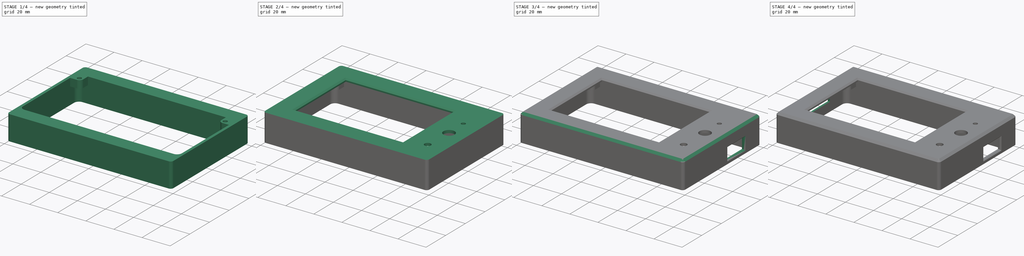
[diagram: build sequence overview — one tinted view per stage of 4, left to right]
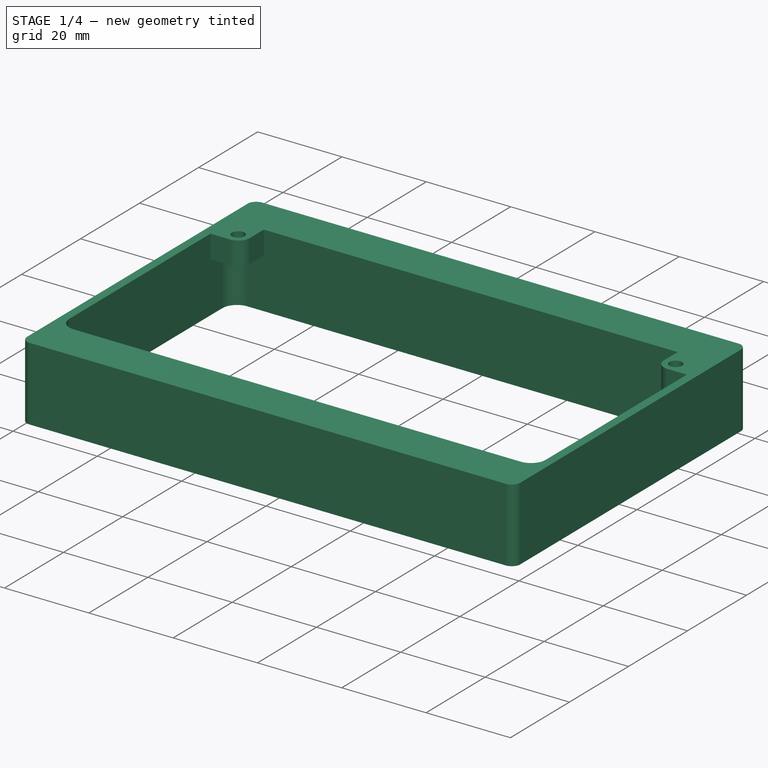
[diagram: stage 1 of 4 — iso view after this stage's code; geometry added in this stage tinted green]
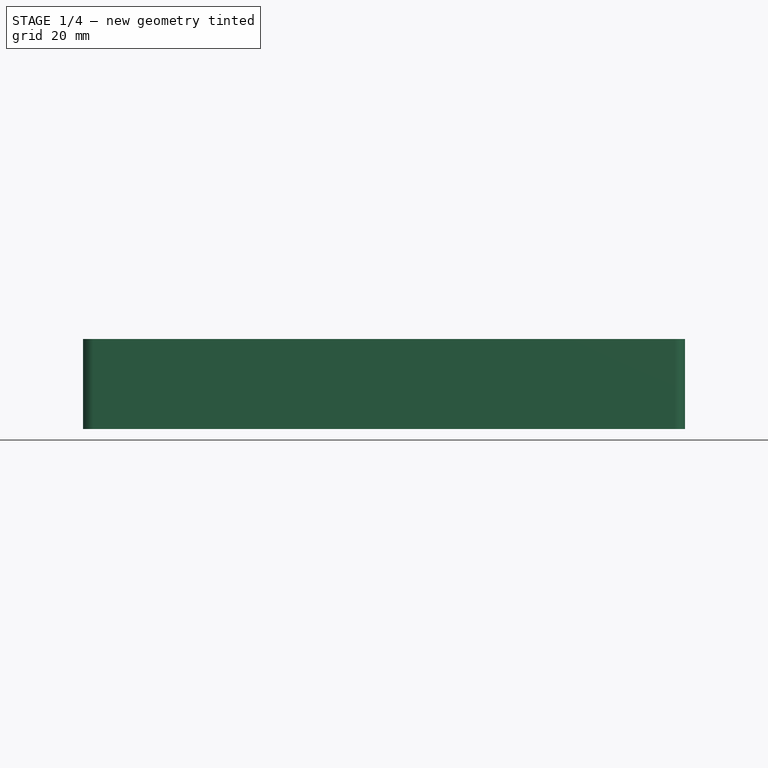
[diagram: stage 1 of 4 — front view after this stage's code; geometry added in this stage tinted green]
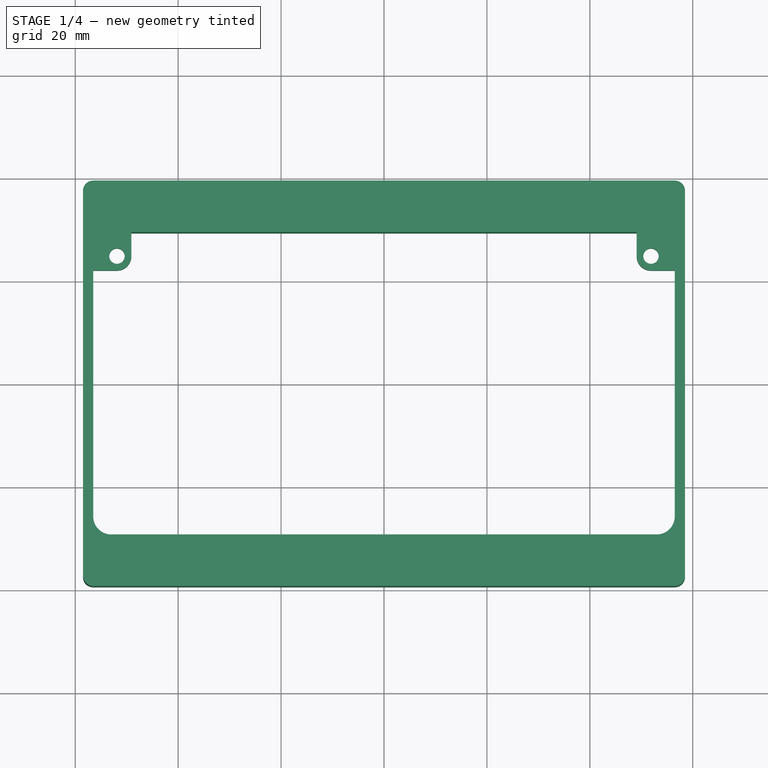
[diagram: stage 1 of 4 — top view after this stage's code; geometry added in this stage tinted green]
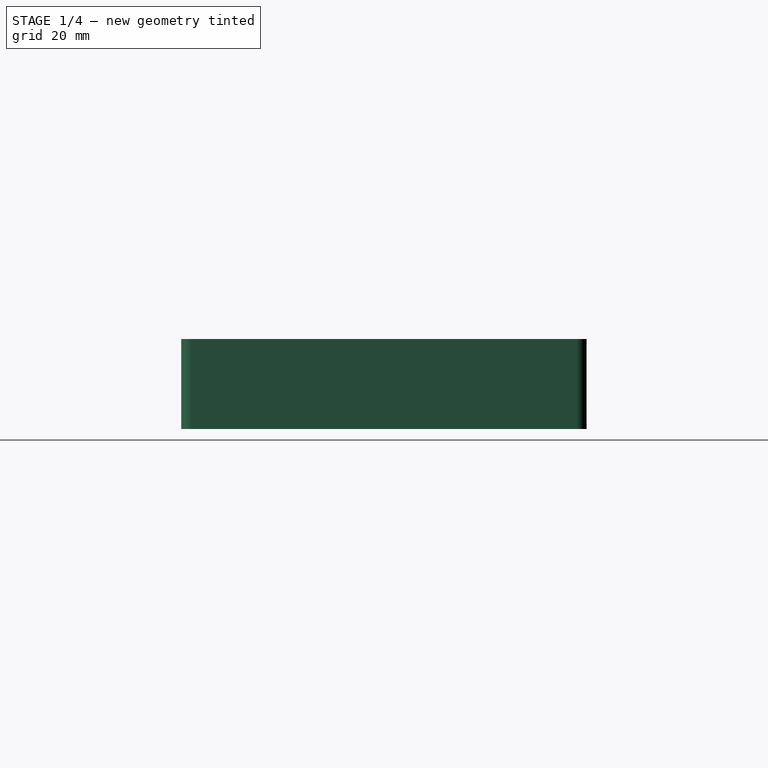
[diagram: stage 1 of 4 — right view after this stage's code; geometry added in this stage tinted green]
FCSTD DOCUMENT  (FreeCAD 2022.709R26244 +5001 (Git))
Label: v301_housing
License: All rights reserved
LicenseURL: http://en.wikipedia.org/wiki/All_rights_reserved
objects: Sketcher::SketchObject×6, PartDesign::Chamfer×4, PartDesign::Pad×3, PartDesign::Pocket×3, PartDesign::Mirrored×2, Image::ImagePlane×1, PartDesign::Body×1
note: 43 computed .brp shape members not serialized (recipe doc carries the construction recipe); baked Part::Feature solids carry a one-line shape summary decoded from their .brp

FEATURE [Image::ImagePlane] ImagePlane
  Placement = pos=(-7.6,4.88,0) rot=(0,0,1;0rad)
  TreeRank = 1
  XSize = 166.573
  YSize = 86.0715
FEATURE [Sketcher::SketchObject] Sketch
  ArcFitTolerance = 1e-06
  AttachmentSupport = -> [XY_Plane]
  FullyConstrained = true
  MapMode = 5
  Support = -> [XY_Plane]
  TreeRank = 14
  sketch-geometry (41):
    g0: ArcOfCircle [constr] CenterX=-53 CenterY=25.885 CenterZ=0 NormalX=0 NormalY=0 NormalZ=1 AngleXU=0 Radius=2 StartAngle=1.5708 EndAngle=3.14159
    g1: LineSegment [constr] StartX=-53 StartY=27.885 StartZ=0 EndX=53 EndY=27.885 EndZ=0
    g2: ArcOfCircle [constr] CenterX=53 CenterY=25.885 CenterZ=0 NormalX=0 NormalY=0 NormalZ=1 AngleXU=0 Radius=2 StartAngle=-9e-16 EndAngle=1.5708
    g3: LineSegment [constr] StartX=55 StartY=25.885 StartZ=0 EndX=55 EndY=-25.885 EndZ=0
    g4: ArcOfCircle [constr] CenterX=53 CenterY=-25.885 CenterZ=0 NormalX=0 NormalY=0 NormalZ=1 AngleXU=0 Radius=2 StartAngle=4.71239 EndAngle=6.28319
    g5: LineSegment [constr] StartX=53 StartY=-27.885 StartZ=0 EndX=-53 EndY=-27.885 EndZ=0
    g6: ArcOfCircle [constr] CenterX=-53 CenterY=-25.885 CenterZ=0 NormalX=0 NormalY=0 NormalZ=1 AngleXU=0 Radius=2 StartAngle=3.14159 EndAngle=4.71239
    g7: LineSegment [constr] StartX=-55 StartY=-25.885 StartZ=0 EndX=-55 EndY=25.885 EndZ=0
    g8: GeomPoint [constr] X=-55 Y=27.885 Z=0
    g9: GeomPoint [constr] X=55 Y=-27.885 Z=0
    g10: LineSegment [constr] StartX=51.88 StartY=-24.715 StartZ=0 EndX=51.88 EndY=24.715 EndZ=0
    g11: LineSegment [constr] StartX=51.88 StartY=24.715 StartZ=0 EndX=-51.88 EndY=24.715 EndZ=0
    g12: LineSegment [constr] StartX=-51.88 StartY=24.715 StartZ=0 EndX=-51.88 EndY=-24.715 EndZ=0
    g13: LineSegment [constr] StartX=-51.88 StartY=-24.715 StartZ=0 EndX=51.88 EndY=-24.715 EndZ=0
    g14: GeomPoint [constr] X=0 Y=0 Z=0
    g15: Circle [constr] CenterX=-51.88 CenterY=24.715 CenterZ=0 NormalX=0 NormalY=0 NormalZ=1 AngleXU=0 Radius=1.5
    g16: Circle [constr] CenterX=51.88 CenterY=24.715 CenterZ=0 NormalX=0 NormalY=0 NormalZ=1 AngleXU=0 Radius=1.5
    g17: Circle [constr] CenterX=-51.88 CenterY=-24.715 CenterZ=0 NormalX=0 NormalY=0 NormalZ=1 AngleXU=0 Radius=1.5
    g18: ArcOfCircle CenterX=-53 CenterY=25.885 CenterZ=0 NormalX=0 NormalY=0 NormalZ=1 AngleXU=0 Radius=3.5 StartAngle=1.5708 EndAngle=3.14159
    g19: LineSegment StartX=-53 StartY=29.385 StartZ=0 EndX=53 EndY=29.385 EndZ=0
    g20: ArcOfCircle CenterX=53 CenterY=25.885 CenterZ=0 NormalX=0 NormalY=0 NormalZ=1 AngleXU=0 Radius=3.5 StartAngle=0 EndAngle=1.5708
    g21: LineSegment StartX=56.5 StartY=25.885 StartZ=0 EndX=56.5 EndY=-25.885 EndZ=0
    g22: ArcOfCircle CenterX=53 CenterY=-25.885 CenterZ=0 NormalX=0 NormalY=0 NormalZ=1 AngleXU=0 Radius=3.5 StartAngle=4.71239 EndAngle=6.28319
    g23: LineSegment StartX=53 StartY=-29.385 StartZ=0 EndX=-53 EndY=-29.385 EndZ=0
    g24: ArcOfCircle CenterX=-53 CenterY=-25.885 CenterZ=0 NormalX=0 NormalY=0 NormalZ=1 AngleXU=0 Radius=3.5 StartAngle=3.14159 EndAngle=4.71239
    g25: LineSegment StartX=-56.5 StartY=-25.885 StartZ=0 EndX=-56.5 EndY=25.885 EndZ=0
    g26: GeomPoint [constr] X=-56.5 Y=29.385 Z=0
    g27: GeomPoint [constr] X=56.5 Y=-29.385 Z=0
    g28: Circle [constr] CenterX=51.88 CenterY=-24.715 CenterZ=0 NormalX=0 NormalY=0 NormalZ=1 AngleXU=0 Radius=1.5
    g29: LineSegment [constr] StartX=55 StartY=-25.885 StartZ=0 EndX=56.5 EndY=-25.885 EndZ=0
    g30: LineSegment [constr] StartX=53 StartY=-27.885 StartZ=0 EndX=53 EndY=-29.385 EndZ=0
    g31: ArcOfCircle CenterX=-56.5 CenterY=37.385 CenterZ=0 NormalX=0 NormalY=0 NormalZ=1 AngleXU=0 Radius=2 StartAngle=1.5708 EndAngle=3.14159
    g32: LineSegment StartX=-56.5 StartY=39.385 StartZ=0 EndX=56.5 EndY=39.385 EndZ=0
    g33: ArcOfCircle CenterX=56.5 CenterY=37.385 CenterZ=0 NormalX=0 NormalY=0 NormalZ=1 AngleXU=0 Radius=2 StartAngle=0 EndAngle=1.5708
    g34: LineSegment StartX=58.5 StartY=37.385 StartZ=0 EndX=58.5 EndY=-37.385 EndZ=0
    g35: ArcOfCircle CenterX=56.5 CenterY=-37.385 CenterZ=0 NormalX=0 NormalY=0 NormalZ=1 AngleXU=0 Radius=2 StartAngle=4.71239 EndAngle=6.28319
    g36: LineSegment StartX=56.5 StartY=-39.385 StartZ=0 EndX=-56.5 EndY=-39.385 EndZ=0
    g37: ArcOfCircle CenterX=-56.5 CenterY=-37.385 CenterZ=0 NormalX=0 NormalY=0 NormalZ=1 AngleXU=0 Radius=2 StartAngle=3.14159 EndAngle=4.71239
    g38: LineSegment StartX=-58.5 StartY=-37.385 StartZ=0 EndX=-58.5 EndY=37.385 EndZ=0
    g39: GeomPoint [constr] X=-58.5 Y=39.385 Z=0
    g40: GeomPoint [constr] X=58.5 Y=-39.385 Z=0
  constraints (93):
    c: Tangent(g0,g1) = 1.5708
    c: Tangent(g1,g2) = 1.5708
    c: Tangent(g2,g3) = 1.5708
    c: Tangent(g3,g4) = 1.5708
    c: Tangent(g4,g5) = 1.5708
    c: Tangent(g5,g6) = 1.5708
    c: Tangent(g6,g7) = 1.5708
    c: Tangent(g7,g0) = 1.5708
    c: Horizontal(g1)
    c: Horizontal(g5)
    c: Vertical(g3)
    c: Vertical(g7)
    c: Equal(g0,g2)
    c: Equal(g2,g4)
    c: Equal(g4,g6)
    c: PointOnObject(g8,g1)
    c: PointOnObject(g8,g7)
    c: PointOnObject(g9,g3)
    c: PointOnObject(g9,g5)
    c: DistanceX(g0,g2) = 110
    c: Diameter(g2) = 4
    c: DistanceY(g4,g1) = 55.77
    c: Symmetric(g4,g0,g-1)
    c: Coincident(g10,g11)
    c: Coincident(g11,g12)
    c: Coincident(g12,g13)
    c: Coincident(g13,g10)
    c: Horizontal(g11)
    c: Horizontal(g13)
    c: Vertical(g10)
    c: Vertical(g12)
    c: Symmetric(g11,g10,g14)
    c: Coincident(g14,g-1)
    c: DistanceX(g11,g11) = 103.76
    c: DistanceY(g10,g10) = 49.43
    c: Coincident(g15,g11)
    c: Coincident(g16,g10)
    c: Coincident(g17,g12)
    c: Equal(g17,g15)
    c: Equal(g17,g16)
    c: Diameter(g17) = 3
    c: Tangent(g18,g19) = 1.5708
    c: Tangent(g19,g20) = 1.5708
    c: Tangent(g20,g21) = 1.5708
    c: Tangent(g21,g22) = 1.5708
    c: Tangent(g22,g23) = 1.5708
    c: Tangent(g23,g24) = 1.5708
    c: Tangent(g24,g25) = 1.5708
    c: Tangent(g25,g18) = 1.5708
    c: Horizontal(g19)
    c: Horizontal(g23)
    c: Vertical(g21)
    c: Vertical(g25)
    c: Equal(g18,g20)
    c: Equal(g20,g22)
    c: Equal(g22,g24)
    c: PointOnObject(g26,g19)
    c: PointOnObject(g26,g25)
    c: PointOnObject(g27,g21)
    c: PointOnObject(g27,g23)
    c: Horizontal(g3,g21)
    c: Coincident(g28,g10)
    c: Equal(g28,g17)
    c: Coincident(g29,g3)
    c: Coincident(g29,g21)
    c: Vertical(g4,g22)
    c: Coincident(g30,g4)
    c: Coincident(g30,g22)
    c: Symmetric(g22,g18,g14)
    c: DistanceX(g29,g29) = 1.5
    c: Tangent(g31,g32) = 1.5708
    c: Tangent(g32,g33) = 1.5708
    c: Tangent(g33,g34) = 1.5708
    c: Tangent(g34,g35) = 1.5708
    c: Tangent(g35,g36) = 1.5708
    c: Tangent(g36,g37) = 1.5708
    c: Tangent(g37,g38) = 1.5708
    c: Tangent(g38,g31) = 1.5708
    c: Horizontal(g32)
    c: Horizontal(g36)
    c: Vertical(g34)
    c: Vertical(g38)
    c: Equal(g31,g33)
    c: Equal(g33,g35)
    c: Equal(g35,g37)
    c: PointOnObject(g39,g32)
    c: PointOnObject(g39,g38)
    c: PointOnObject(g40,g34)
    c: PointOnObject(g40,g36)
    c: DistanceY(g36,g23) = 10
    c: DistanceX(g20,g33) = 2
    c: Diameter(g37) = 4
    c: Symmetric(g35,g31,g14)
FEATURE [PartDesign::Pad] Pad
  AddSubType = 0
  AlongSketchNormal = false
  CheckUpToFaceLimits = true
  ClaimChildren = false
  Direction = (0,0,1)
  Fit = 0
  FitJoin = 0
  InnerFit = 0
  InnerFitJoin = 0
  InnerTaperAngle = 0
  InnerTaperAngleRev = 0
  Length = 12
  Length2 = 5.5
  Linearize = true
  NewSolid = false
  Profile = -> Sketch
  Refine = true
  Reversed = true
  Suppress = false
  TreeRank = 15
  Type = 4
  _ProfileBasedVersion = 1
FEATURE [Sketcher::SketchObject] Sketch001
  ArcFitTolerance = 1e-06
  AttachmentSupport = -> [Pad]
  FullyConstrained = true
  MapMode = 5
  Placement = pos=(0,0,5.5) rot=(0,0,1;0rad)
  Support = -> [Pad]
  TreeRank = 16
  expr: Constraints[19] = Sketch.Constraints[19]
  expr: Constraints[20] = Sketch.Constraints[20]
  expr: Constraints[21] = Sketch.Constraints[21]
  expr: Constraints[33] = Sketch.Constraints[33]
  expr: Constraints[34] = Sketch.Constraints[34]
  expr: Constraints[40] = Sketch.Constraints[40]
  expr: Constraints[69] = Sketch.Constraints[69]
  expr: Constraints[89] = Sketch.Constraints[89]
  expr: Constraints[90] = Sketch.Constraints[90]
  expr: Constraints[91] = Sketch.Constraints[91]
  sketch-geometry (47):
    g0: ArcOfCircle [constr] CenterX=-53 CenterY=25.885 CenterZ=0 NormalX=0 NormalY=0 NormalZ=1 AngleXU=0 Radius=2 StartAngle=1.5708 EndAngle=3.14159
    g1: LineSegment [constr] StartX=-53 StartY=27.885 StartZ=0 EndX=53 EndY=27.885 EndZ=0
    g2: ArcOfCircle [constr] CenterX=53 CenterY=25.885 CenterZ=0 NormalX=0 NormalY=0 NormalZ=1 AngleXU=0 Radius=2 StartAngle=5e-16 EndAngle=1.5708
    g3: LineSegment [constr] StartX=55 StartY=25.885 StartZ=0 EndX=55 EndY=-25.885 EndZ=0
    g4: ArcOfCircle [constr] CenterX=53 CenterY=-25.885 CenterZ=0 NormalX=0 NormalY=0 NormalZ=1 AngleXU=0 Radius=2 StartAngle=4.71239 EndAngle=6.28319
    g5: LineSegment [constr] StartX=53 StartY=-27.885 StartZ=0 EndX=-53 EndY=-27.885 EndZ=0
    g6: ArcOfCircle [constr] CenterX=-53 CenterY=-25.885 CenterZ=0 NormalX=0 NormalY=0 NormalZ=1 AngleXU=0 Radius=2 StartAngle=3.14159 EndAngle=4.71239
    g7: LineSegment [constr] StartX=-55 StartY=-25.885 StartZ=0 EndX=-55 EndY=25.885 EndZ=0
    g8: GeomPoint X=-55 Y=27.885 Z=0
    g9: GeomPoint [constr] X=55 Y=-27.885 Z=0
    g10: LineSegment [constr] StartX=51.88 StartY=-24.715 StartZ=0 EndX=51.88 EndY=24.715 EndZ=0
    g11: LineSegment [constr] StartX=51.88 StartY=24.715 StartZ=0 EndX=-51.88 EndY=24.715 EndZ=0
    g12: LineSegment [constr] StartX=-51.88 StartY=24.715 StartZ=0 EndX=-51.88 EndY=-24.715 EndZ=0
    g13: LineSegment [constr] StartX=-51.88 StartY=-24.715 StartZ=0 EndX=51.88 EndY=-24.715 EndZ=0
    g14: GeomPoint [constr] X=0 Y=0 Z=0
    g15: Circle CenterX=-51.88 CenterY=24.715 CenterZ=0 NormalX=0 NormalY=0 NormalZ=1 AngleXU=0 Radius=1.5
    g16: Circle [constr] CenterX=51.88 CenterY=24.715 CenterZ=0 NormalX=0 NormalY=0 NormalZ=1 AngleXU=0 Radius=1.5
    g17: Circle [constr] CenterX=-51.88 CenterY=-24.715 CenterZ=0 NormalX=0 NormalY=0 NormalZ=1 AngleXU=0 Radius=1.5
    g18: ArcOfCircle [constr] CenterX=-53 CenterY=25.885 CenterZ=0 NormalX=0 NormalY=0 NormalZ=1 AngleXU=0 Radius=3.5 StartAngle=1.5708 EndAngle=3.14159
    g19: LineSegment [constr] StartX=-53 StartY=29.385 StartZ=0 EndX=53 EndY=29.385 EndZ=0
    g20: ArcOfCircle [constr] CenterX=53 CenterY=25.885 CenterZ=0 NormalX=0 NormalY=0 NormalZ=1 AngleXU=0 Radius=3.5 StartAngle=6e-16 EndAngle=1.5708
    g21: LineSegment [constr] StartX=56.5 StartY=25.885 StartZ=0 EndX=56.5 EndY=-25.885 EndZ=0
    g22: ArcOfCircle [constr] CenterX=53 CenterY=-25.885 CenterZ=0 NormalX=0 NormalY=0 NormalZ=1 AngleXU=0 Radius=3.5 StartAngle=4.71239 EndAngle=6.28319
    g23: LineSegment [constr] StartX=53 StartY=-29.385 StartZ=0 EndX=-53 EndY=-29.385 EndZ=0
    g24: ArcOfCircle [constr] CenterX=-53 CenterY=-25.885 CenterZ=0 NormalX=0 NormalY=0 NormalZ=1 AngleXU=0 Radius=3.5 StartAngle=3.14159 EndAngle=4.71239
    g25: LineSegment [constr] StartX=-56.5 StartY=-25.885 StartZ=0 EndX=-56.5 EndY=25.885 EndZ=0
    g26: GeomPoint X=-56.5 Y=29.385 Z=0
    g27: GeomPoint X=56.5 Y=-29.385 Z=0
    g28: Circle [constr] CenterX=51.88 CenterY=-24.715 CenterZ=0 NormalX=0 NormalY=0 NormalZ=1 AngleXU=0 Radius=1.5
    g29: LineSegment [constr] StartX=55 StartY=-25.885 StartZ=0 EndX=56.5 EndY=-25.885 EndZ=0
    g30: LineSegment [constr] StartX=53 StartY=-27.885 StartZ=0 EndX=53 EndY=-29.385 EndZ=0
    g31: ArcOfCircle [constr] CenterX=-56.5 CenterY=37.385 CenterZ=0 NormalX=0 NormalY=0 NormalZ=1 AngleXU=0 Radius=2 StartAngle=1.5708 EndAngle=3.14159
    g32: LineSegment [constr] StartX=-56.5 StartY=39.385 StartZ=0 EndX=56.5 EndY=39.385 EndZ=0
    g33: ArcOfCircle [constr] CenterX=56.5 CenterY=37.385 CenterZ=0 NormalX=0 NormalY=0 NormalZ=1 AngleXU=0 Radius=2 StartAngle=-9e-16 EndAngle=1.5708
    g34: LineSegment [constr] StartX=58.5 StartY=37.385 StartZ=0 EndX=58.5 EndY=-37.385 EndZ=0
    g35: ArcOfCircle [constr] CenterX=56.5 CenterY=-37.385 CenterZ=0 NormalX=0 NormalY=0 NormalZ=1 AngleXU=0 Radius=2 StartAngle=4.71239 EndAngle=6.28319
    g36: LineSegment [constr] StartX=56.5 StartY=-39.385 StartZ=0 EndX=-56.5 EndY=-39.385 EndZ=0
    g37: ArcOfCircle [constr] CenterX=-56.5 CenterY=-37.385 CenterZ=0 NormalX=0 NormalY=0 NormalZ=1 AngleXU=0 Radius=2 StartAngle=3.14159 EndAngle=4.71239
    g38: LineSegment [constr] StartX=-58.5 StartY=-37.385 StartZ=0 EndX=-58.5 EndY=37.385 EndZ=0
    g39: GeomPoint X=-58.5 Y=39.385 Z=0
    g40: GeomPoint X=58.5 Y=-39.385 Z=0
    g41: ArcOfCircle CenterX=-51.88 CenterY=24.715 CenterZ=0 NormalX=0 NormalY=0 NormalZ=1 AngleXU=0 Radius=2.8 StartAngle=4.71239 EndAngle=6.28319
    g42: LineSegment [constr] StartX=-49.08 StartY=24.715 StartZ=0 EndX=-50.38 EndY=24.715 EndZ=0
    g43: LineSegment StartX=-49.08 StartY=24.715 StartZ=0 EndX=-49.08 EndY=29.385 EndZ=0
    g44: LineSegment StartX=-49.08 StartY=29.385 StartZ=0 EndX=-56.5 EndY=29.385 EndZ=0
    g45: LineSegment StartX=-51.88 StartY=21.915 StartZ=0 EndX=-56.5 EndY=21.915 EndZ=0
    g46: LineSegment StartX=-56.5 StartY=21.915 StartZ=0 EndX=-56.5 EndY=29.385 EndZ=0
  constraints (110):
    c: Tangent(g0,g1) = 1.5708
    c: Tangent(g1,g2) = 1.5708
    c: Tangent(g2,g3) = 1.5708
    c: Tangent(g3,g4) = 1.5708
    c: Tangent(g4,g5) = 1.5708
    c: Tangent(g5,g6) = 1.5708
    c: Tangent(g6,g7) = 1.5708
    c: Tangent(g7,g0) = 1.5708
    c: Horizontal(g1)
    c: Horizontal(g5)
    c: Vertical(g3)
    c: Vertical(g7)
    c: Equal(g0,g2)
    c: Equal(g2,g4)
    c: Equal(g4,g6)
    c: PointOnObject(g8,g1)
    c: PointOnObject(g8,g7)
    c: PointOnObject(g9,g3)
    c: PointOnObject(g9,g5)
    c: DistanceX(g0,g2) = 110
    c: Diameter(g2) = 4
    c: DistanceY(g4,g1) = 55.77
    c: Symmetric(g4,g0,g-1)
    c: Coincident(g10,g11)
    c: Coincident(g11,g12)
    c: Coincident(g12,g13)
    c: Coincident(g13,g10)
    c: Horizontal(g11)
    c: Horizontal(g13)
    c: Vertical(g10)
    c: Vertical(g12)
    c: Symmetric(g11,g10,g14)
    c: Coincident(g14,g-1)
    c: DistanceX(g11,g11) = 103.76
    c: DistanceY(g10,g10) = 49.43
    c: Coincident(g15,g11)
    c: Coincident(g16,g10)
    c: Coincident(g17,g12)
    c: Equal(g17,g15)
    c: Equal(g17,g16)
    c: Diameter(g17) = 3
    c: Tangent(g18,g19) = 1.5708
    c: Tangent(g19,g20) = 1.5708
    c: Tangent(g20,g21) = 1.5708
    c: Tangent(g21,g22) = 1.5708
    c: Tangent(g22,g23) = 1.5708
    c: Tangent(g23,g24) = 1.5708
    c: Tangent(g24,g25) = 1.5708
    c: Tangent(g25,g18) = 1.5708
    c: Horizontal(g19)
    c: Horizontal(g23)
    c: Vertical(g21)
    c: Vertical(g25)
    c: Equal(g18,g20)
    c: Equal(g20,g22)
    c: Equal(g22,g24)
    c: PointOnObject(g26,g19)
    c: PointOnObject(g26,g25)
    c: PointOnObject(g27,g21)
    c: PointOnObject(g27,g23)
    c: Horizontal(g3,g21)
    c: Coincident(g28,g10)
    c: Equal(g28,g17)
    c: Coincident(g29,g3)
    c: Coincident(g29,g21)
    c: Vertical(g4,g22)
    c: Coincident(g30,g4)
    c: Coincident(g30,g22)
    c: Symmetric(g22,g18,g14)
    c: DistanceX(g29,g29) = 1.5
    c: Tangent(g31,g32) = 1.5708
    c: Tangent(g32,g33) = 1.5708
    c: Tangent(g33,g34) = 1.5708
    c: Tangent(g34,g35) = 1.5708
    c: Tangent(g35,g36) = 1.5708
    c: Tangent(g36,g37) = 1.5708
    c: Tangent(g37,g38) = 1.5708
    c: Tangent(g38,g31) = 1.5708
    c: Horizontal(g32)
    c: Horizontal(g36)
    c: Vertical(g34)
    c: Vertical(g38)
    c: Equal(g31,g33)
    c: Equal(g33,g35)
    c: Equal(g35,g37)
    c: PointOnObject(g39,g32)
    c: PointOnObject(g39,g38)
    c: PointOnObject(g40,g34)
    c: PointOnObject(g40,g36)
    c: DistanceY(g36,g23) = 10
    c: DistanceX(g20,g33) = 2
    c: Diameter(g37) = 4
    c: Symmetric(g35,g31,g14)
    c: Coincident(g41,g11)
    c: PointOnObject(g41,g12)
    c: PointOnObject(g41,g11)
    c: Coincident(g42,g41)
    c: PointOnObject(g42,g15)
    c: Horizontal(g42)
    c: DistanceX(g42,g42) = 1.3
    c: Tangent(g41,g43) = -1.5708
    c: Coincident(g43,g44)
    c: Horizontal(g44)
    c: Tangent(g44,g18)
    c: Coincident(g45,g41)
    c: PointOnObject(g45,g25)
    c: Horizontal(g45)
    c: Coincident(g46,g45)
    c: Vertical(g46)
    c: Coincident(g46,g44)
FEATURE [PartDesign::Pad] Pad001
  AddSubType = 0
  AlongSketchNormal = false
  BaseFeature = -> Pad
  CheckUpToFaceLimits = true
  ClaimChildren = false
  Direction = (0,0,1)
  Fit = 0
  FitJoin = 0
  InnerFit = 0
  InnerFitJoin = 0
  InnerTaperAngle = 0
  InnerTaperAngleRev = 0
  Length = 5.5
  Length2 = 100
  Linearize = true
  NewSolid = false
  Profile = -> Sketch001
  Refine = true
  Reversed = true
  Suppress = false
  TreeRank = 17
  Type = 0
  _ProfileBasedVersion = 1
FEATURE [PartDesign::Mirrored] Mirrored
  AddSubType = 0
  BaseFeature = -> Pad001
  CopyShape = false
  MirrorPlane = -> Sketch001 [V_Axis]
  NewSolid = false
  OriginalSubs = -> [Pad001]
  Originals = -> [Pad001]
  ParallelTransform = true
  Refine = true
  SubTransform = true
  Suppress = false
  TreeRank = 18
  _Version = 3
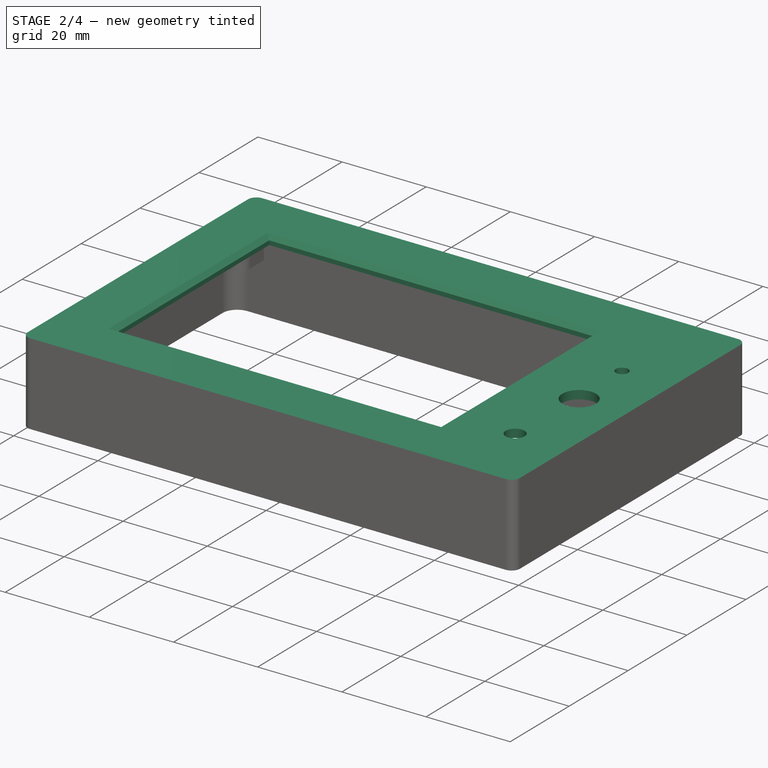
[diagram: stage 2 of 4 — iso view after this stage's code; geometry added in this stage tinted green]
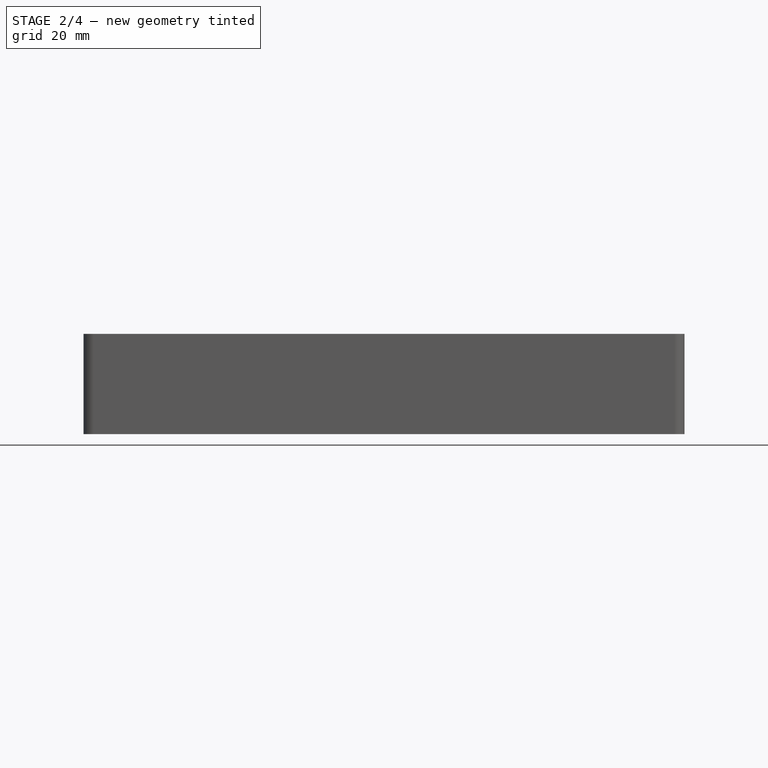
[diagram: stage 2 of 4 — front view after this stage's code; geometry added in this stage tinted green]
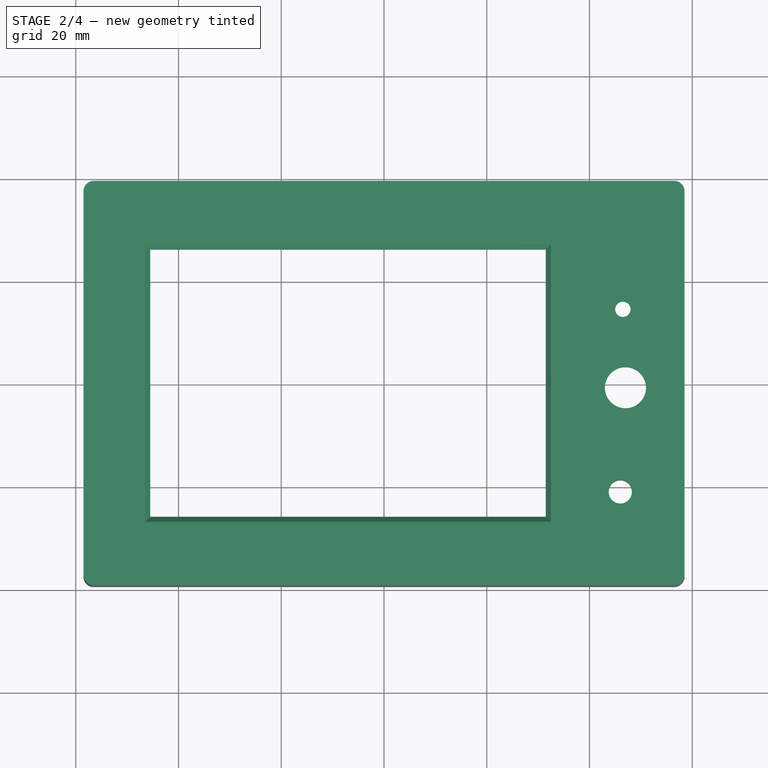
[diagram: stage 2 of 4 — top view after this stage's code; geometry added in this stage tinted green]
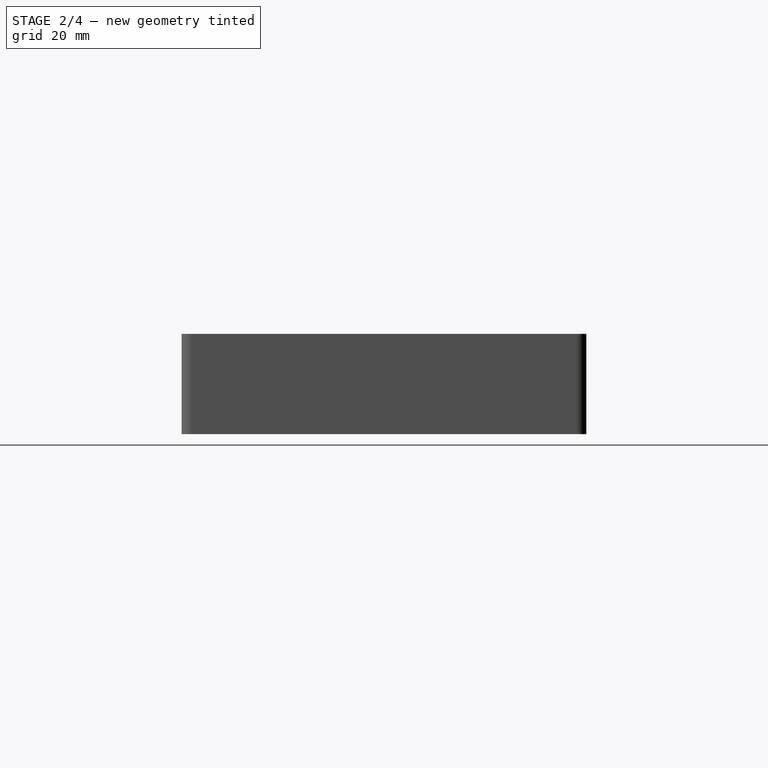
[diagram: stage 2 of 4 — right view after this stage's code; geometry added in this stage tinted green]
FEATURE [PartDesign::Mirrored] Mirrored001
  AddSubType = 0
  BaseFeature = -> Mirrored
  CopyShape = false
  MirrorPlane = -> XZ_Plane
  NewSolid = false
  OriginalSubs = -> [Mirrored,Pad001]
  Originals = -> [Mirrored,Pad001]
  ParallelTransform = true
  Refine = true
  SubTransform = true
  Suppress = false
  TreeRank = 19
  _Version = 3
FEATURE [Sketcher::SketchObject] Sketch002
  ArcFitTolerance = 1e-06
  AttachmentSupport = -> [Mirrored001]
  FullyConstrained = true
  MapMode = 5
  Placement = pos=(0,0,5.5) rot=(0,0,1;0rad)
  Support = -> [Mirrored001]
  TreeRank = 20
  expr: Constraints[19] = Sketch.Constraints[19]
  expr: Constraints[20] = Sketch.Constraints[20]
  expr: Constraints[21] = Sketch.Constraints[21]
  expr: Constraints[33] = Sketch.Constraints[33]
  expr: Constraints[34] = Sketch.Constraints[34]
  expr: Constraints[40] = Sketch.Constraints[40]
  expr: Constraints[69] = Sketch.Constraints[69]
  expr: Constraints[89] = Sketch.Constraints[89]
  expr: Constraints[90] = Sketch.Constraints[90]
  expr: Constraints[91] = Sketch.Constraints[91]
  sketch-geometry (48):
    g0: ArcOfCircle [constr] CenterX=-53 CenterY=25.885 CenterZ=0 NormalX=0 NormalY=0 NormalZ=1 AngleXU=0 Radius=2 StartAngle=1.5708 EndAngle=3.14159
    g1: LineSegment [constr] StartX=-53 StartY=27.885 StartZ=0 EndX=53 EndY=27.885 EndZ=0
    g2: ArcOfCircle [constr] CenterX=53 CenterY=25.885 CenterZ=0 NormalX=0 NormalY=0 NormalZ=1 AngleXU=0 Radius=2 StartAngle=0 EndAngle=1.5708
    g3: LineSegment [constr] StartX=55 StartY=25.885 StartZ=0 EndX=55 EndY=-25.885 EndZ=0
    g4: ArcOfCircle [constr] CenterX=53 CenterY=-25.885 CenterZ=0 NormalX=0 NormalY=0 NormalZ=1 AngleXU=0 Radius=2 StartAngle=4.71239 EndAngle=6.28319
    g5: LineSegment [constr] StartX=53 StartY=-27.885 StartZ=0 EndX=-53 EndY=-27.885 EndZ=0
    g6: ArcOfCircle [constr] CenterX=-53 CenterY=-25.885 CenterZ=0 NormalX=0 NormalY=0 NormalZ=1 AngleXU=0 Radius=2 StartAngle=3.14159 EndAngle=4.71239
    g7: LineSegment [constr] StartX=-55 StartY=-25.885 StartZ=0 EndX=-55 EndY=25.885 EndZ=0
    g8: GeomPoint [constr] X=-55 Y=27.885 Z=0
    g9: GeomPoint [constr] X=55 Y=-27.885 Z=0
    g10: LineSegment [constr] StartX=51.88 StartY=-24.715 StartZ=0 EndX=51.88 EndY=24.715 EndZ=0
    g11: LineSegment [constr] StartX=51.88 StartY=24.715 StartZ=0 EndX=-51.88 EndY=24.715 EndZ=0
    g12: LineSegment [constr] StartX=-51.88 StartY=24.715 StartZ=0 EndX=-51.88 EndY=-24.715 EndZ=0
    g13: LineSegment [constr] StartX=-51.88 StartY=-24.715 StartZ=0 EndX=51.88 EndY=-24.715 EndZ=0
    g14: GeomPoint [constr] X=0 Y=0 Z=0
    g15: Circle [constr] CenterX=-51.88 CenterY=24.715 CenterZ=0 NormalX=0 NormalY=0 NormalZ=1 AngleXU=0 Radius=1.5
    g16: Circle [constr] CenterX=51.88 CenterY=24.715 CenterZ=0 NormalX=0 NormalY=0 NormalZ=1 AngleXU=0 Radius=1.5
    g17: Circle [constr] CenterX=-51.88 CenterY=-24.715 CenterZ=0 NormalX=0 NormalY=0 NormalZ=1 AngleXU=0 Radius=1.5
    g18: ArcOfCircle [constr] CenterX=-53 CenterY=25.885 CenterZ=0 NormalX=0 NormalY=0 NormalZ=1 AngleXU=0 Radius=3.5 StartAngle=1.5708 EndAngle=3.14159
    g19: LineSegment [constr] StartX=-53 StartY=29.385 StartZ=0 EndX=53 EndY=29.385 EndZ=0
    g20: ArcOfCircle [constr] CenterX=53 CenterY=25.885 CenterZ=0 NormalX=0 NormalY=0 NormalZ=1 AngleXU=0 Radius=3.5 StartAngle=6e-16 EndAngle=1.5708
    g21: LineSegment [constr] StartX=56.5 StartY=25.885 StartZ=0 EndX=56.5 EndY=-25.885 EndZ=0
    g22: ArcOfCircle [constr] CenterX=53 CenterY=-25.885 CenterZ=0 NormalX=0 NormalY=0 NormalZ=1 AngleXU=0 Radius=3.5 StartAngle=4.71239 EndAngle=6.28319
    g23: LineSegment [constr] StartX=53 StartY=-29.385 StartZ=0 EndX=-53 EndY=-29.385 EndZ=0
    g24: ArcOfCircle [constr] CenterX=-53 CenterY=-25.885 CenterZ=0 NormalX=0 NormalY=0 NormalZ=1 AngleXU=0 Radius=3.5 StartAngle=3.14159 EndAngle=4.71239
    g25: LineSegment [constr] StartX=-56.5 StartY=-25.885 StartZ=0 EndX=-56.5 EndY=25.885 EndZ=0
    g26: GeomPoint [constr] X=-56.5 Y=29.385 Z=0
    g27: GeomPoint [constr] X=56.5 Y=-29.385 Z=0
    g28: Circle [constr] CenterX=51.88 CenterY=-24.715 CenterZ=0 NormalX=0 NormalY=0 NormalZ=1 AngleXU=0 Radius=1.5
    g29: LineSegment [constr] StartX=55 StartY=-25.885 StartZ=0 EndX=56.5 EndY=-25.885 EndZ=0
    g30: LineSegment [constr] StartX=53 StartY=-27.885 StartZ=0 EndX=53 EndY=-29.385 EndZ=0
    g31: ArcOfCircle CenterX=-56.5 CenterY=37.385 CenterZ=0 NormalX=0 NormalY=0 NormalZ=1 AngleXU=0 Radius=2 StartAngle=1.5708 EndAngle=3.14159
    g32: LineSegment StartX=-56.5 StartY=39.385 StartZ=0 EndX=56.5 EndY=39.385 EndZ=0
    g33: ArcOfCircle CenterX=56.5 CenterY=37.385 CenterZ=0 NormalX=0 NormalY=0 NormalZ=1 AngleXU=0 Radius=2 StartAngle=1.5e-15 EndAngle=1.5708
    g34: LineSegment StartX=58.5 StartY=37.385 StartZ=0 EndX=58.5 EndY=-37.385 EndZ=0
    g35: ArcOfCircle CenterX=56.5 CenterY=-37.385 CenterZ=0 NormalX=0 NormalY=0 NormalZ=1 AngleXU=0 Radius=2 StartAngle=4.71239 EndAngle=6.28319
    g36: LineSegment StartX=56.5 StartY=-39.385 StartZ=0 EndX=-56.5 EndY=-39.385 EndZ=0
    g37: ArcOfCircle CenterX=-56.5 CenterY=-37.385 CenterZ=0 NormalX=0 NormalY=0 NormalZ=1 AngleXU=0 Radius=2 StartAngle=3.14159 EndAngle=4.71239
    g38: LineSegment StartX=-58.5 StartY=-37.385 StartZ=0 EndX=-58.5 EndY=37.385 EndZ=0
    g39: GeomPoint [constr] X=-58.5 Y=39.385 Z=0
    g40: GeomPoint [constr] X=58.5 Y=-39.385 Z=0
    g41: LineSegment StartX=-45.5 StartY=26 StartZ=0 EndX=31.5 EndY=26 EndZ=0
    g42: LineSegment StartX=31.5 StartY=26 StartZ=0 EndX=31.5 EndY=-26 EndZ=0
    g43: LineSegment StartX=31.5 StartY=-26 StartZ=0 EndX=-45.5 EndY=-26 EndZ=0
    g44: LineSegment StartX=-45.5 StartY=-26 StartZ=0 EndX=-45.5 EndY=26 EndZ=0
    g45: Circle CenterX=47 CenterY=-0.885 CenterZ=0 NormalX=0 NormalY=0 NormalZ=1 AngleXU=0 Radius=4
    g46: Circle CenterX=46 CenterY=-21.185 CenterZ=0 NormalX=0 NormalY=0 NormalZ=1 AngleXU=0 Radius=2.25
    g47: Circle CenterX=46.5 CenterY=14.385 CenterZ=0 NormalX=0 NormalY=0 NormalZ=1 AngleXU=0 Radius=1.5
  constraints (113):
    c: Tangent(g0,g1) = 1.5708
    c: Tangent(g1,g2) = 1.5708
    c: Tangent(g2,g3) = 1.5708
    c: Tangent(g3,g4) = 1.5708
    c: Tangent(g4,g5) = 1.5708
    c: Tangent(g5,g6) = 1.5708
    c: Tangent(g6,g7) = 1.5708
    c: Tangent(g7,g0) = 1.5708
    c: Horizontal(g1)
    c: Horizontal(g5)
    c: Vertical(g3)
    c: Vertical(g7)
    c: Equal(g0,g2)
    c: Equal(g2,g4)
    c: Equal(g4,g6)
    c: PointOnObject(g8,g1)
    c: PointOnObject(g8,g7)
    c: PointOnObject(g9,g3)
    c: PointOnObject(g9,g5)
    c: DistanceX(g0,g2) = 110
    c: Diameter(g2) = 4
    c: DistanceY(g4,g1) = 55.77
    c: Symmetric(g4,g0,g-1)
    c: Coincident(g10,g11)
    c: Coincident(g11,g12)
    c: Coincident(g12,g13)
    c: Coincident(g13,g10)
    c: Horizontal(g11)
    c: Horizontal(g13)
    c: Vertical(g10)
    c: Vertical(g12)
    c: Symmetric(g11,g10,g14)
    c: Coincident(g14,g-1)
    c: DistanceX(g11,g11) = 103.76
    c: DistanceY(g10,g10) = 49.43
    c: Coincident(g15,g11)
    c: Coincident(g16,g10)
    c: Coincident(g17,g12)
    c: Equal(g17,g15)
    c: Equal(g17,g16)
    c: Diameter(g17) = 3
    c: Tangent(g18,g19) = 1.5708
    c: Tangent(g19,g20) = 1.5708
    c: Tangent(g20,g21) = 1.5708
    c: Tangent(g21,g22) = 1.5708
    c: Tangent(g22,g23) = 1.5708
    c: Tangent(g23,g24) = 1.5708
    c: Tangent(g24,g25) = 1.5708
    c: Tangent(g25,g18) = 1.5708
    c: Horizontal(g19)
    c: Horizontal(g23)
    c: Vertical(g21)
    c: Vertical(g25)
    c: Equal(g18,g20)
    c: Equal(g20,g22)
    c: Equal(g22,g24)
    c: PointOnObject(g26,g19)
    c: PointOnObject(g26,g25)
    c: PointOnObject(g27,g21)
    c: PointOnObject(g27,g23)
    c: Horizontal(g3,g21)
    c: Coincident(g28,g10)
    c: Equal(g28,g17)
    c: Coincident(g29,g3)
    c: Coincident(g29,g21)
    c: Vertical(g4,g22)
    c: Coincident(g30,g4)
    c: Coincident(g30,g22)
    c: Symmetric(g22,g18,g14)
    c: DistanceX(g29,g29) = 1.5
    c: Tangent(g31,g32) = 1.5708
    c: Tangent(g32,g33) = 1.5708
    c: Tangent(g33,g34) = 1.5708
    c: Tangent(g34,g35) = 1.5708
    c: Tangent(g35,g36) = 1.5708
    c: Tangent(g36,g37) = 1.5708
    c: Tangent(g37,g38) = 1.5708
    c: Tangent(g38,g31) = 1.5708
    c: Horizontal(g32)
    c: Horizontal(g36)
    c: Vertical(g34)
    c: Vertical(g38)
    c: Equal(g31,g33)
    c: Equal(g33,g35)
    c: Equal(g35,g37)
    c: PointOnObject(g39,g32)
    c: PointOnObject(g39,g38)
    c: PointOnObject(g40,g34)
    c: PointOnObject(g40,g36)
    c: DistanceY(g36,g23) = 10
    c: DistanceX(g20,g33) = 2
    c: Diameter(g37) = 4
    c: Symmetric(g35,g31,g14)
    c: Coincident(g41,g42)
    c: Coincident(g42,g43)
    c: Coincident(g43,g44)
    c: Coincident(g44,g41)
    c: Horizontal(g41)
    c: Horizontal(g43)
    c: Vertical(g44)
    c: DistanceY(g42,g42) = 52
    c: Symmetric(g42,g41,g-1)
    c: DistanceX(g41,g41) = 77
    c: DistanceX(g0,g41) = 9.5
    c: DistanceX(g46,g3) = 9
    c: DistanceY(g4,g46) = 6.7
    c: Diameter(g46) = 4.5
    c: Diameter(g45) = 8
    c: DistanceX(g45,g3) = 8
    c: DistanceY(g4,g45) = 27
    c: Diameter(g47) = 3
    c: DistanceX(g47,g2) = 8.5
    c: DistanceY(g47,g1) = 13.5
FEATURE [PartDesign::Pad] Pad002
  AddSubType = 0
  AlongSketchNormal = false
  BaseFeature = -> Mirrored001
  CheckUpToFaceLimits = true
  ClaimChildren = false
  Direction = (0,0,1)
  Fit = 0
  FitJoin = 0
  InnerFit = 0
  InnerFitJoin = 0
  InnerTaperAngle = 0
  InnerTaperAngleRev = 0
  Length = 2
  Length2 = 100
  Linearize = true
  NewSolid = false
  Profile = -> Sketch002
  Refine = true
  Suppress = false
  TreeRank = 21
  Type = 0
  _ProfileBasedVersion = 1
FEATURE [PartDesign::Chamfer] Chamfer
  AddSubType = 0
  Angle = 45
  Base = -> Pad002 [Edge94,Edge105,Edge104,Edge103]
  BaseFeature = -> Pad002
  ChamferType = 0
  FlipDirection = false
  NewSolid = false
  Refine = true
  Size = 1
  Size2 = 1
  SupportTransform = false
  Suppress = false
  TreeRank = 22
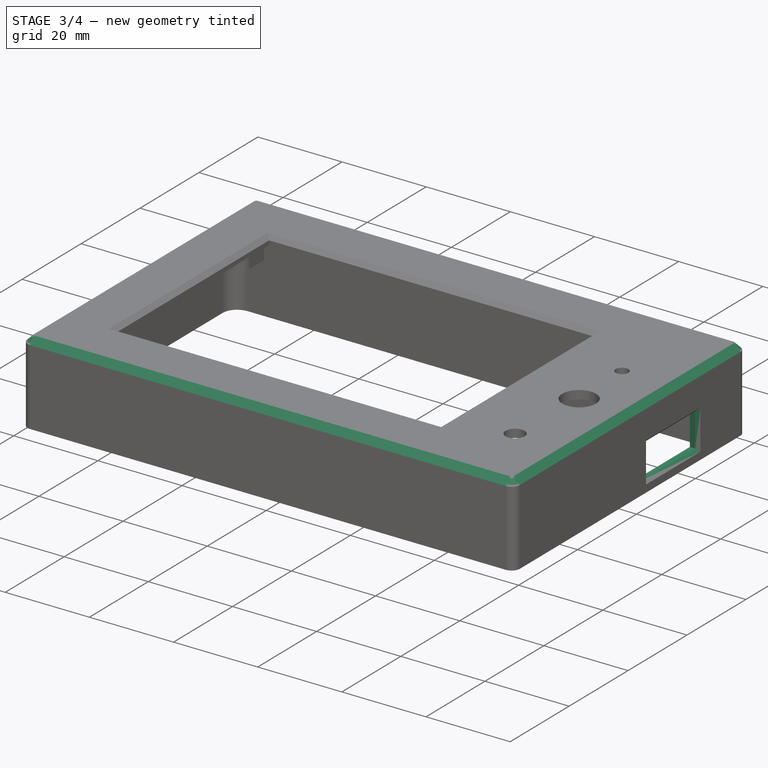
[diagram: stage 3 of 4 — iso view after this stage's code; geometry added in this stage tinted green]
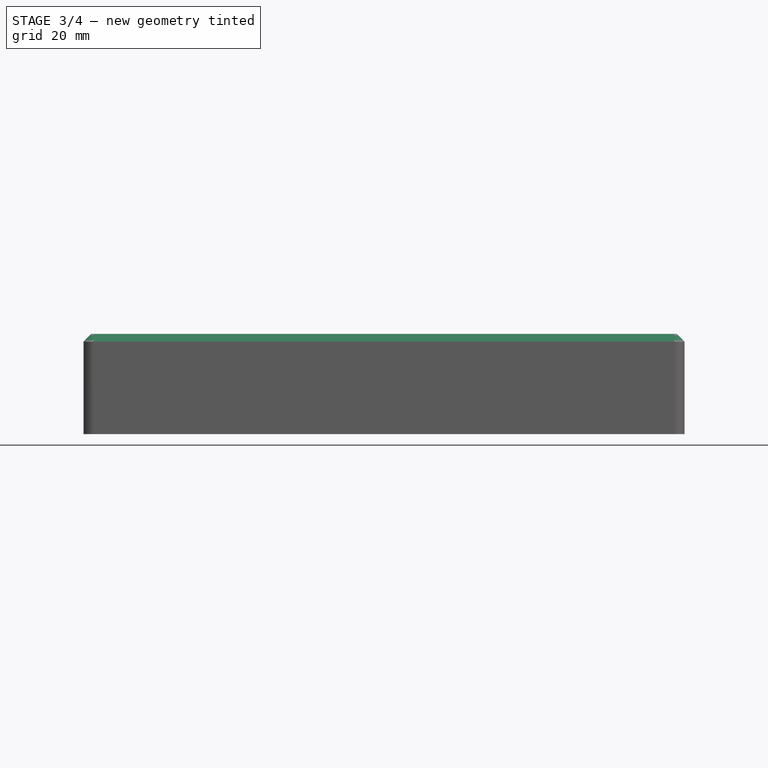
[diagram: stage 3 of 4 — front view after this stage's code; geometry added in this stage tinted green]
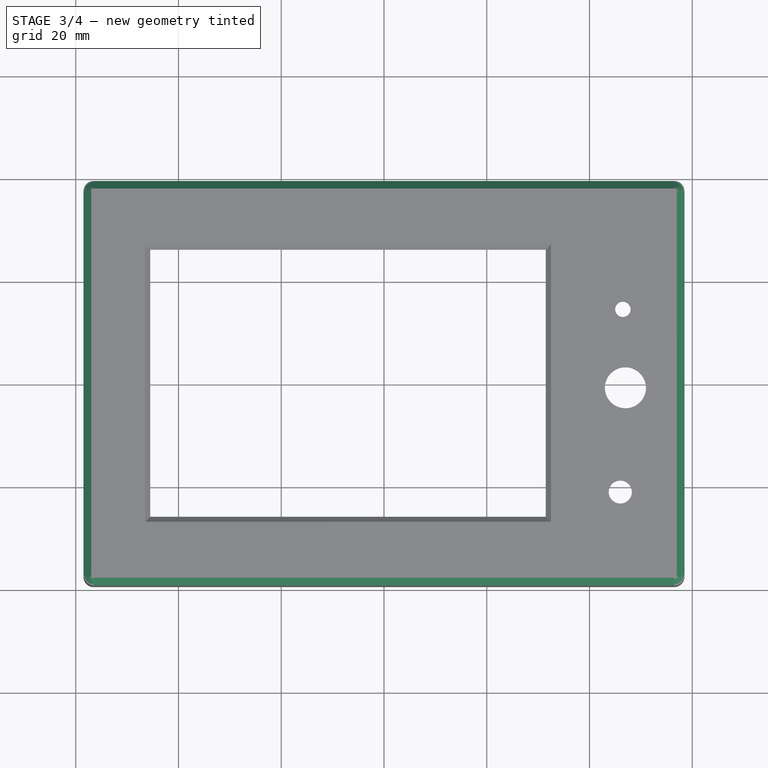
[diagram: stage 3 of 4 — top view after this stage's code; geometry added in this stage tinted green]
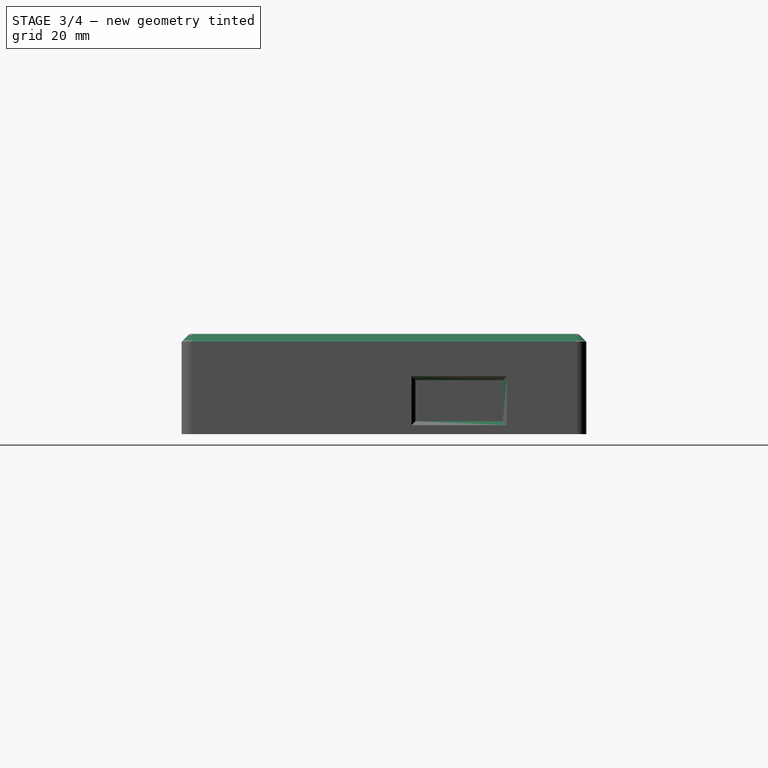
[diagram: stage 3 of 4 — right view after this stage's code; geometry added in this stage tinted green]
FEATURE [Sketcher::SketchObject] Sketch003
  ArcFitTolerance = 1e-06
  AttachmentSupport = -> [Chamfer]
  ExternalGeometry = -> [Chamfer]
  FullyConstrained = true
  MapMode = 5
  Placement = pos=(58.5,-1e-15,-4e-16) rot=(0.57735,0.57735,0.57735;2.0944rad)
  Support = -> [Chamfer]
  TreeRank = 23
  sketch-geometry (4):
    g0: LineSegment StartX=6.115 StartY=-1.5 StartZ=0 EndX=23.135 EndY=-1.5 EndZ=0
    g1: LineSegment StartX=23.135 StartY=-1.5 StartZ=0 EndX=23.135 EndY=-9.5 EndZ=0
    g2: LineSegment StartX=23.135 StartY=-9.5 StartZ=0 EndX=6.115 EndY=-9.5 EndZ=0
    g3: LineSegment StartX=6.115 StartY=-9.5 StartZ=0 EndX=6.115 EndY=-1.5 EndZ=0
  constraints (12):
    c: Coincident(g0,g1)
    c: Coincident(g1,g2)
    c: Coincident(g2,g3)
    c: Coincident(g3,g0)
    c: Horizontal(g0)
    c: Horizontal(g2)
    c: Vertical(g1)
    c: Vertical(g3)
    c: DistanceX(g1,g-3) = 6.25
    c: DistanceX(g-4,g2) = 35.5
    c: DistanceY(g1,g1) = 8
    c: DistanceY(g0,g-1) = 1.5
FEATURE [PartDesign::Chamfer] Chamfer001
  AddSubType = 0
  Angle = 45
  Base = -> Chamfer [Edge44]
  BaseFeature = -> Chamfer
  ChamferType = 0
  FlipDirection = false
  NewSolid = false
  Refine = true
  Size = 1.5
  Size2 = 1
  SupportTransform = false
  Suppress = false
  TreeRank = 24
FEATURE [PartDesign::Pocket] Pocket
  AddSubType = 1
  BaseFeature = -> Chamfer001
  CheckUpToFaceLimits = true
  ClaimChildren = false
  Fit = 0
  FitJoin = 0
  InnerFit = 0
  InnerFitJoin = 0
  InnerTaperAngle = 0
  InnerTaperAngleRev = 0
  Length = 5
  Length2 = 100
  Linearize = true
  NewSolid = false
  Profile = -> Sketch003
  Refine = true
  Suppress = false
  TreeRank = 25
  Type = 2
  _ProfileBasedVersion = 1
  _Version = 1
FEATURE [PartDesign::Chamfer] Chamfer002
  AddSubType = 0
  Angle = 45
  Base = -> Pocket [Edge50,Edge51,Edge52,Edge49]
  BaseFeature = -> Pocket
  ChamferType = 0
  FlipDirection = false
  NewSolid = false
  Refine = true
  Size = 0.75
  Size2 = 1
  SupportTransform = false
  Suppress = false
  TreeRank = 26
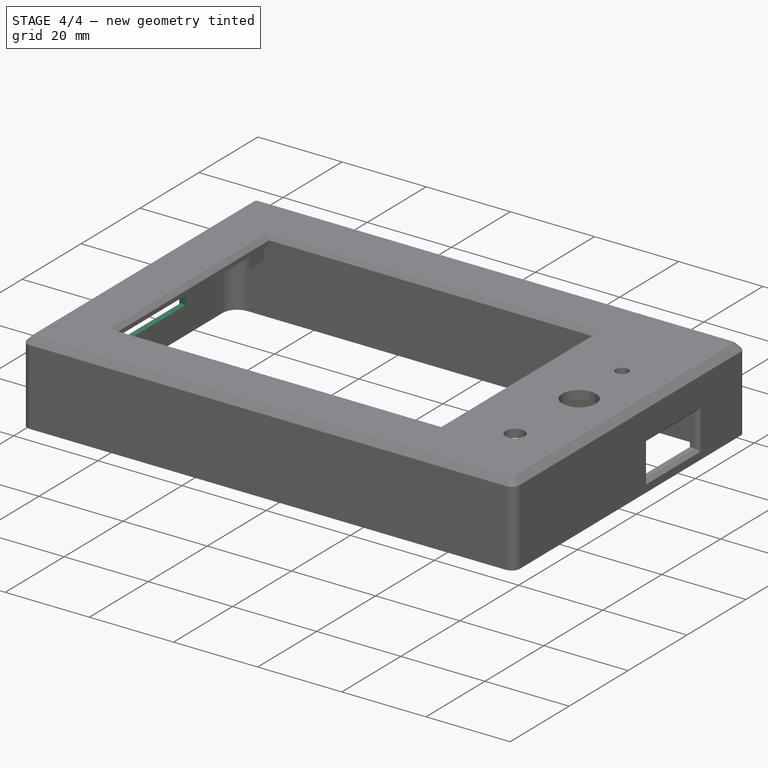
[diagram: stage 4 of 4 — iso view after this stage's code; geometry added in this stage tinted green]
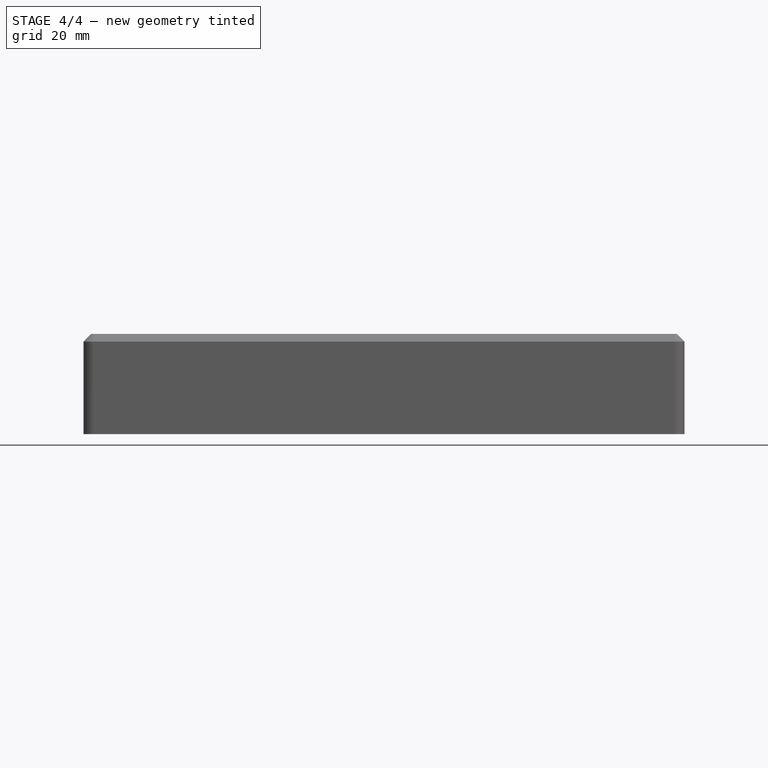
[diagram: stage 4 of 4 — front view after this stage's code; geometry added in this stage tinted green]
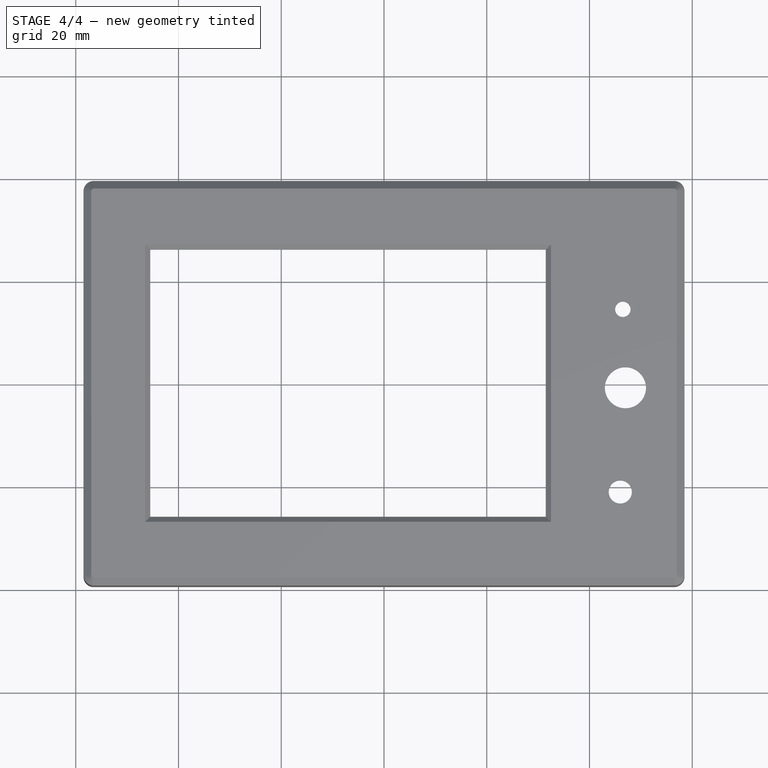
[diagram: stage 4 of 4 — top view after this stage's code; geometry added in this stage tinted green]
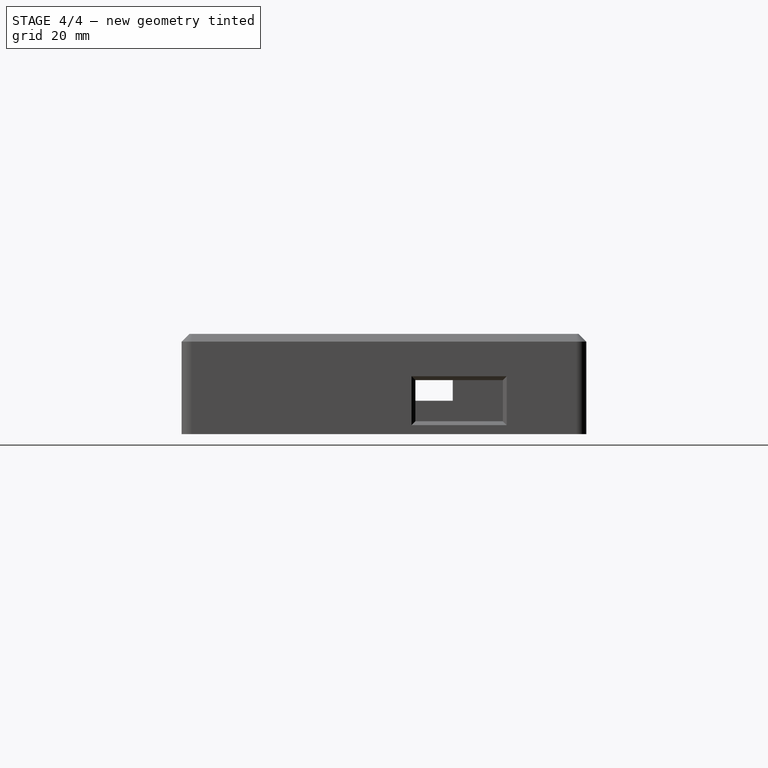
[diagram: stage 4 of 4 — right view after this stage's code; geometry added in this stage tinted green]
FEATURE [Sketcher::SketchObject] Sketch004
  ArcFitTolerance = 1e-06
  AttachmentSupport = -> [Chamfer002]
  ExternalGeometry = -> [Chamfer002]
  FullyConstrained = true
  MapMode = 5
  Placement = pos=(-58.5,-1e-15,-5.57e-14) rot=(0.57735,-0.57735,-0.57735;2.0944rad)
  Support = -> [Chamfer002]
  TreeRank = 27
  sketch-geometry (4):
    g0: LineSegment StartX=-13.385 StartY=-1.5 StartZ=0 EndX=12.615 EndY=-1.5 EndZ=0
    g1: LineSegment StartX=12.615 StartY=-1.5 StartZ=0 EndX=12.615 EndY=-5.5 EndZ=0
    g2: LineSegment StartX=12.615 StartY=-5.5 StartZ=0 EndX=-13.385 EndY=-5.5 EndZ=0
    g3: LineSegment StartX=-13.385 StartY=-5.5 StartZ=0 EndX=-13.385 EndY=-1.5 EndZ=0
  constraints (12):
    c: Coincident(g0,g1)
    c: Coincident(g1,g2)
    c: Coincident(g2,g3)
    c: Coincident(g3,g0)
    c: Horizontal(g0)
    c: Horizontal(g2)
    c: Vertical(g1)
    c: Vertical(g3)
    c: DistanceX(g-3,g2) = 16
    c: DistanceX(g2,g2) = 26
    c: DistanceY(g0,g-1) = 1.5
    c: DistanceY(g1,g1) = 4
FEATURE [PartDesign::Pocket] Pocket001
  AddSubType = 1
  BaseFeature = -> Chamfer002
  CheckUpToFaceLimits = true
  ClaimChildren = false
  Fit = 0
  FitJoin = 0
  InnerFit = 0
  InnerFitJoin = 0
  InnerTaperAngle = 0
  InnerTaperAngleRev = 0
  Length = 5
  Length2 = 100
  Linearize = true
  NewSolid = false
  Profile = -> Sketch004
  Refine = true
  Suppress = false
  TreeRank = 28
  Type = 2
  _ProfileBasedVersion = 1
  _Version = 1
FEATURE [PartDesign::Chamfer] Chamfer003
  AddSubType = 0
  Angle = 45
  Base = -> Pocket001 [Edge70,Edge69,Edge72,Edge71]
  BaseFeature = -> Pocket001
  ChamferType = 0
  FlipDirection = false
  NewSolid = false
  Refine = true
  Size = 0.7
  Size2 = 1
  SupportTransform = false
  Suppress = false
  TreeRank = 29
FEATURE [Sketcher::SketchObject] Sketch005
  ArcFitTolerance = 1e-06
  AttachmentSupport = -> [Chamfer003]
  ExternalGeometry = -> [Chamfer003]
  FullyConstrained = true
  MapMode = 5
  Placement = pos=(0,0,-12) rot=(1,0,0;3.14159rad)
  Support = -> [Chamfer003]
  TreeRank = 30
  sketch-geometry (10):
    g0: LineSegment [constr] StartX=-43 StartY=34.385 StartZ=0 EndX=43 EndY=34.385 EndZ=0
    g1: LineSegment [constr] StartX=43 StartY=34.385 StartZ=0 EndX=43 EndY=-34.385 EndZ=0
    g2: LineSegment [constr] StartX=43 StartY=-34.385 StartZ=0 EndX=-43 EndY=-34.385 EndZ=0
    g3: LineSegment [constr] StartX=-43 StartY=-34.385 StartZ=0 EndX=-43 EndY=34.385 EndZ=0
    g4: Circle CenterX=-43 CenterY=34.385 CenterZ=0 NormalX=0 NormalY=0 NormalZ=1 AngleXU=0 Radius=2.25
    g5: Circle CenterX=43 CenterY=34.385 CenterZ=0 NormalX=0 NormalY=0 NormalZ=1 AngleXU=0 Radius=2.25
    g6: Circle CenterX=43 CenterY=-34.385 CenterZ=0 NormalX=0 NormalY=0 NormalZ=1 AngleXU=0 Radius=2.25
    g7: Circle CenterX=-43 CenterY=-34.385 CenterZ=0 NormalX=0 NormalY=0 NormalZ=1 AngleXU=0 Radius=2.25
    g8: LineSegment [constr] StartX=43 StartY=34.385 StartZ=0 EndX=43 EndY=39.385 EndZ=0
    g9: LineSegment [constr] StartX=43 StartY=34.385 StartZ=0 EndX=43 EndY=29.385 EndZ=0
  constraints (25):
    c: Coincident(g0,g1)
    c: Coincident(g1,g2)
    c: Coincident(g2,g3)
    c: Coincident(g3,g0)
    c: Horizontal(g0)
    c: Horizontal(g2)
    c: Vertical(g1)
    c: Vertical(g3)
    c: Symmetric(g0,g1,g-1)
    c: Coincident(g4,g0)
    c: Coincident(g5,g0)
    c: Coincident(g6,g1)
    c: Coincident(g7,g2)
    c: Equal(g7,g4)
    c: Equal(g7,g5)
    c: Equal(g7,g6)
    c: Diameter(g7) = 4.5
    c: Coincident(g8,g5)
    c: PointOnObject(g8,g-4)
    c: Coincident(g9,g5)
    c: PointOnObject(g9,g-3)
    c: Equal(g9,g8)
    c: Perpendicular(g-3,g9)
    c: Perpendicular(g-4,g8)
    c: DistanceX(g5,g-3) = 10
FEATURE [PartDesign::Pocket] Pocket002
  AddSubType = 1
  BaseFeature = -> Chamfer003
  CheckUpToFaceLimits = true
  ClaimChildren = false
  Fit = 0
  FitJoin = 0
  InnerFit = 0
  InnerFitJoin = 0
  InnerTaperAngle = 0
  InnerTaperAngleRev = 0
  Length = 6
  Length2 = 100
  Linearize = true
  NewSolid = false
  Profile = -> Sketch005
  Refine = true
  Suppress = false
  TreeRank = 31
  Type = 0
  _ProfileBasedVersion = 1
  _Version = 1
FEATURE [PartDesign::Body] Body
  AutoGroupSolids = false
  ClaimAllChildren = false
  ExportMode = 0
  Group = -> [Sketch,Pad,Sketch001,Pad001,Mirrored,Mirrored001,Sketch002,Pad002,Chamfer,Chamfer001,Sketch003,Pocket,Chamfer002,Sketch004,Pocket001,Chamfer003,Sketch005,Pocket002]
  Origin = -> Origin
  Tip = -> Pocket002
  TreeRank = 13
  _ExportChildren = -> [Pad,Pad001,Mirrored,Mirrored001,Pad002,Chamfer,Chamfer001,Pocket,Chamfer002,Pocket001,Chamfer003,Pocket002]
  _GroupVersion = 1
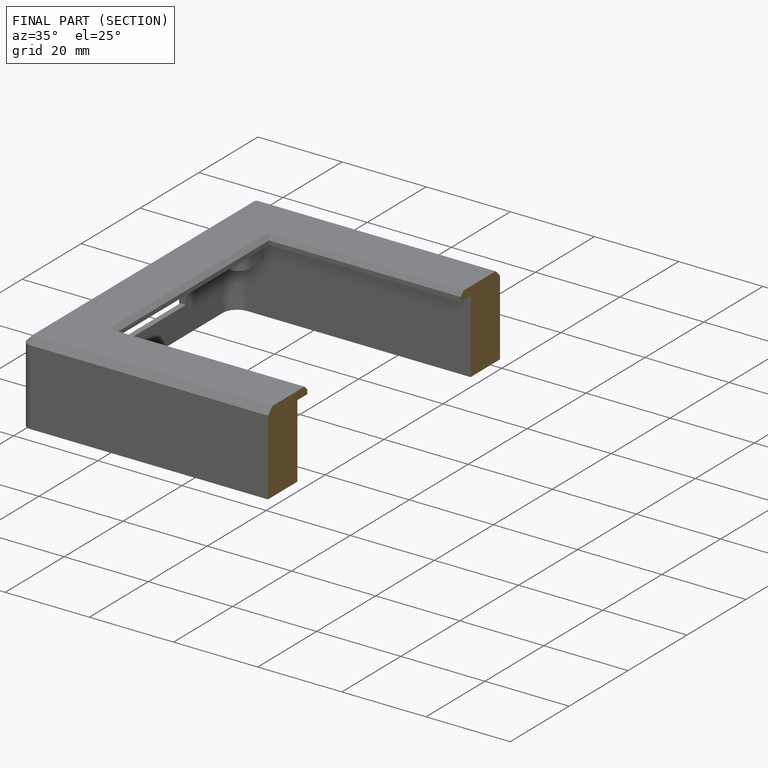
[diagram: finished part — half-section view (interior)]
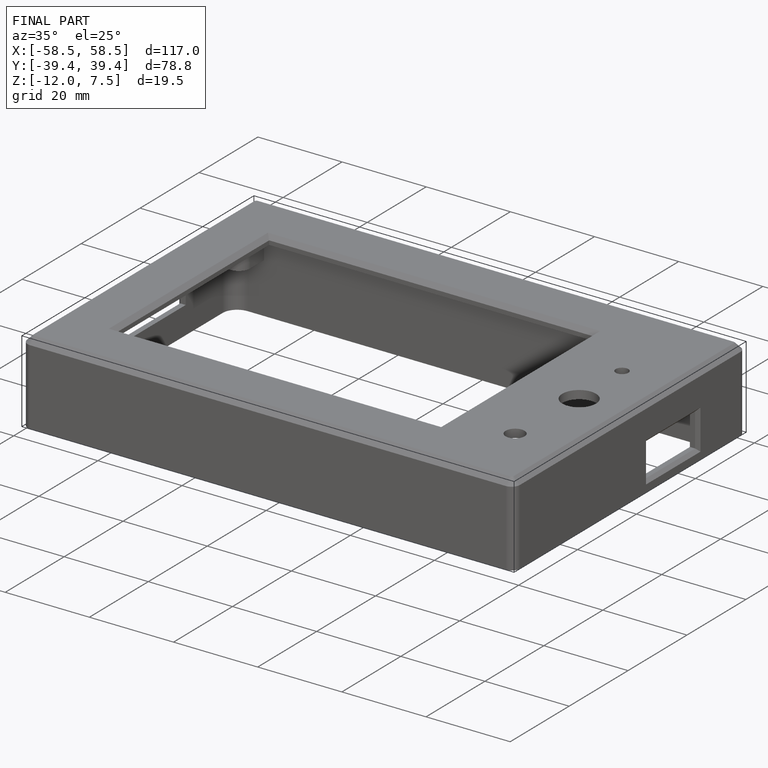
[diagram: finished part — iso view with bounding-box wireframe]
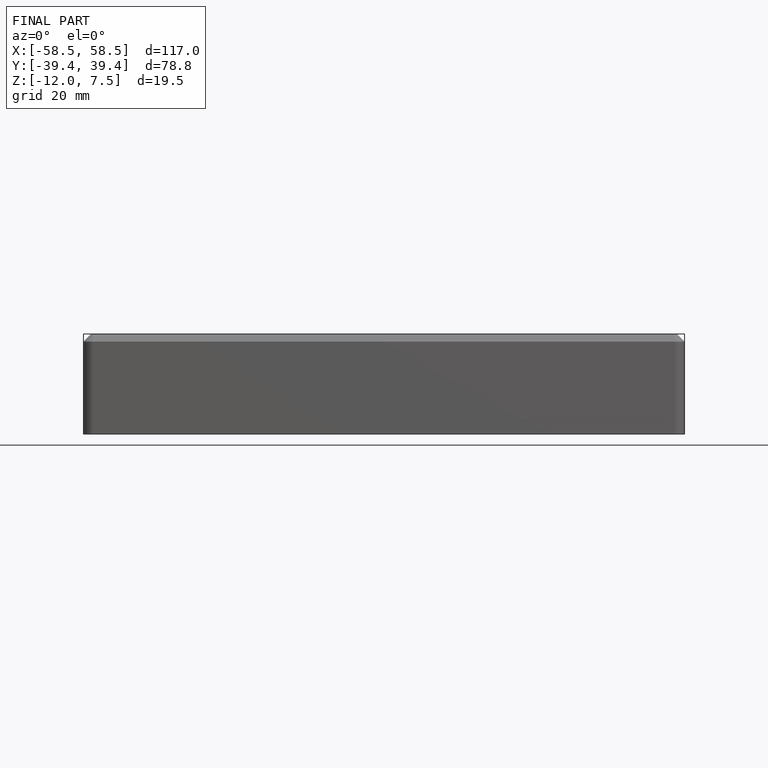
[diagram: finished part — front view with bounding-box wireframe]
